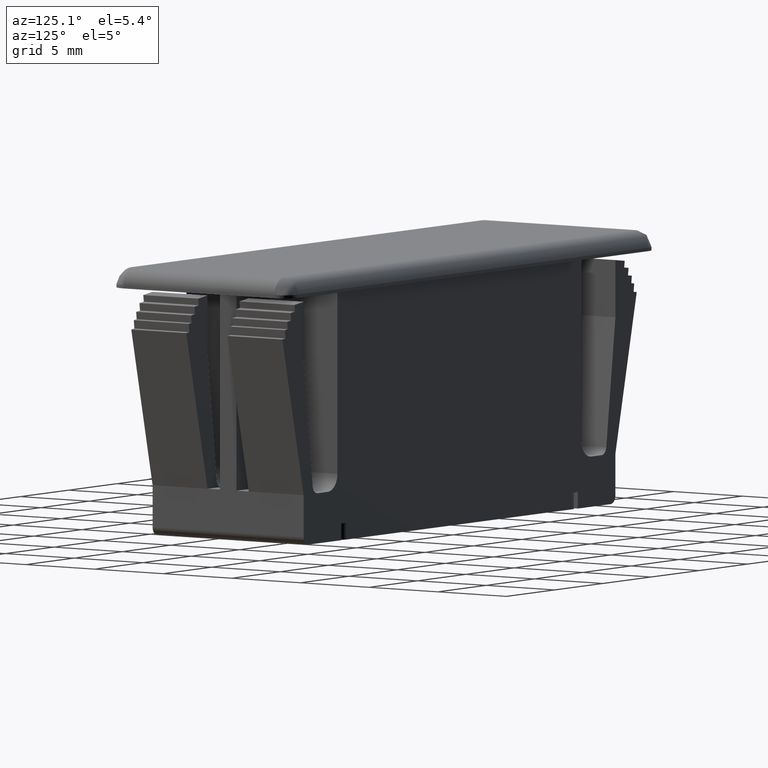
[diagram: clean part render]
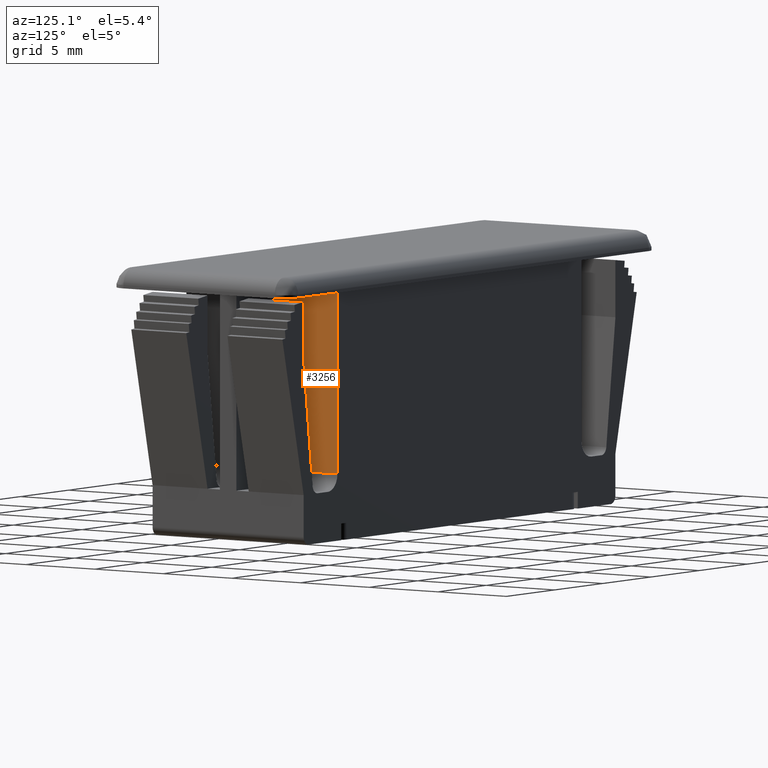
[diagram: same view with one face highlighted and labeled with its STEP entity id]
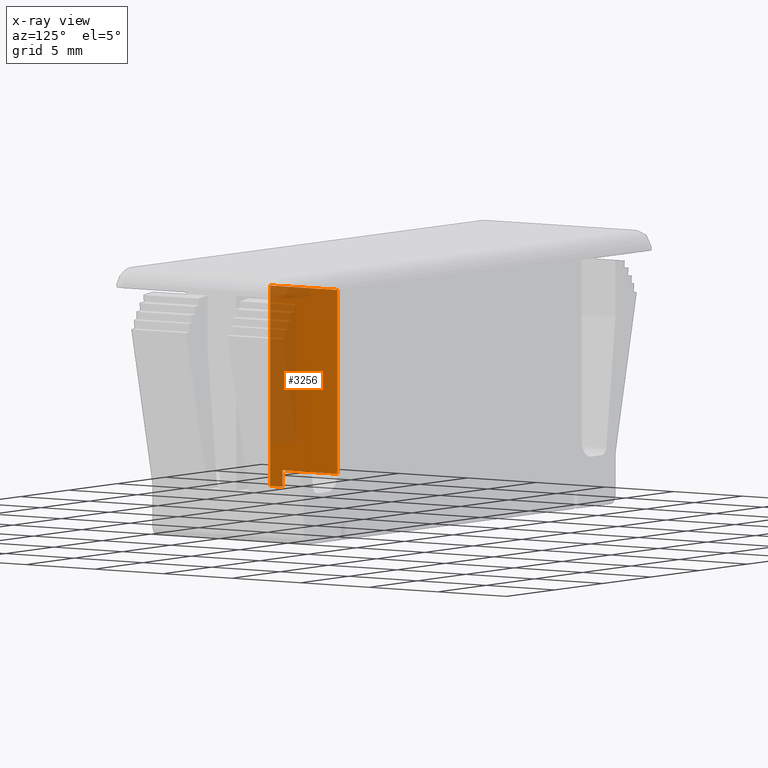
[diagram: x-ray of the same camera — body ghosted, the highlighted face saturated]
A machine part, auxiliary view. The second image highlights one B-rep face of the part: STEP entity #3256.
The next image is the same camera in x-ray: the body ghosted, the highlighted face saturated — about 33% of this face is hidden behind the body in this view.
In plain terms, the highlighted face is a freeform B-spline surface patch.
Its self-contained STEP definition (entity closure, byte-faithful):
#969=CARTESIAN_POINT('',(12.649999999994719,0.600000000000045,-13.199999999916900));
#970=VERTEX_POINT('',#969);
#976=CARTESIAN_POINT('',(12.649999999994639,0.600000000000045,-1.200000000000016));
#977=VERTEX_POINT('',#976);
#978=CARTESIAN_POINT('',(12.649999999994639,0.600000000000045,-1.200000000000016));
#979=CARTESIAN_POINT('',(12.649999999994719,0.600000000000045,-13.199999999916900));
#980=QUASI_UNIFORM_CURVE('',1,(#978,#979),.UNSPECIFIED.,.F.,.U.);
#981=EDGE_CURVE('',#977,#970,#980,.T.);
#1032=CARTESIAN_POINT('',(12.649999999994719,1.500000000000055,-13.199999999917461));
#1033=VERTEX_POINT('',#1032);
#1034=CARTESIAN_POINT('',(12.649999999994639,1.500000000000055,-12.199999999999999));
#1035=VERTEX_POINT('',#1034);
#1036=CARTESIAN_POINT('',(12.649999999994719,1.500000000000055,-13.199999999917461));
#1037=CARTESIAN_POINT('',(12.649999999994639,1.500000000000055,-12.199999999999999));
#1038=QUASI_UNIFORM_CURVE('',1,(#1036,#1037),.UNSPECIFIED.,.F.,.U.);
#1039=EDGE_CURVE('',#1033,#1035,#1038,.T.);
#1343=CARTESIAN_POINT('',(12.649999999994639,5.500000000000000,-1.200000000000016));
#1344=VERTEX_POINT('',#1343);
#1350=CARTESIAN_POINT('',(12.649999999994639,5.500000000000000,-12.199999999999999));
#1351=VERTEX_POINT('',#1350);
#1352=CARTESIAN_POINT('',(12.649999999994639,5.500000000000000,-1.200000000000016));
#1353=CARTESIAN_POINT('',(12.649999999994639,5.500000000000000,-12.199999999999999));
#1354=QUASI_UNIFORM_CURVE('',1,(#1352,#1353),.UNSPECIFIED.,.F.,.U.);
#1355=EDGE_CURVE('',#1344,#1351,#1354,.T.);
#3155=CARTESIAN_POINT('',(12.649999999994639,1.500000000000055,-12.199999999999999));
#3156=CARTESIAN_POINT('',(12.649999999994639,5.500000000000000,-12.199999999999999));
#3157=QUASI_UNIFORM_CURVE('',1,(#3155,#3156),.UNSPECIFIED.,.F.,.U.);
#3158=EDGE_CURVE('',#1035,#1351,#3157,.T.);
#3204=CARTESIAN_POINT('',(12.649999999994719,0.600000000000045,-13.199999999916900));
#3205=CARTESIAN_POINT('',(12.649999999994719,1.500000000000055,-13.199999999917461));
#3206=QUASI_UNIFORM_CURVE('',1,(#3204,#3205),.UNSPECIFIED.,.F.,.U.);
#3207=EDGE_CURVE('',#970,#1033,#3206,.T.);
#3239=CARTESIAN_POINT('',(12.649999999994639,0.355245009497198,-0.600600023262467));
#3240=CARTESIAN_POINT('',(12.649999999994639,0.355245009497198,-13.799400298520091));
#3241=CARTESIAN_POINT('',(12.649999999994639,5.744755121931089,-0.600600023262467));
#3242=CARTESIAN_POINT('',(12.649999999994639,5.744755121931089,-13.799400298520091));
#3243=B_SPLINE_SURFACE_WITH_KNOTS('',1,1,((#3239,#3241),(#3240,#3242)),.UNSPECIFIED.,.F.,.F.,.U.,(2,2),(2,2),(0.0,13.198800275257620),(0.0,5.389510112433891),.UNSPECIFIED.);
#3244=CARTESIAN_POINT('',(12.649999999994639,0.600000000000045,-1.200000000000016));
#3245=CARTESIAN_POINT('',(12.649999999994639,5.500000000000000,-1.200000000000016));
#3246=QUASI_UNIFORM_CURVE('',1,(#3244,#3245),.UNSPECIFIED.,.F.,.U.);
#3247=EDGE_CURVE('',#977,#1344,#3246,.T.);
#3248=ORIENTED_EDGE('',*,*,#3247,.F.);
#3249=ORIENTED_EDGE('',*,*,#981,.T.);
#3250=ORIENTED_EDGE('',*,*,#3207,.T.);
#3251=ORIENTED_EDGE('',*,*,#1039,.T.);
#3252=ORIENTED_EDGE('',*,*,#3158,.T.);
#3253=ORIENTED_EDGE('',*,*,#1355,.F.);
#3254=EDGE_LOOP('',(#3248,#3249,#3250,#3251,#3252,#3253));
#3255=FACE_OUTER_BOUND('',#3254,.T.);
#3256=ADVANCED_FACE('',(#3255),#3243,.T.);